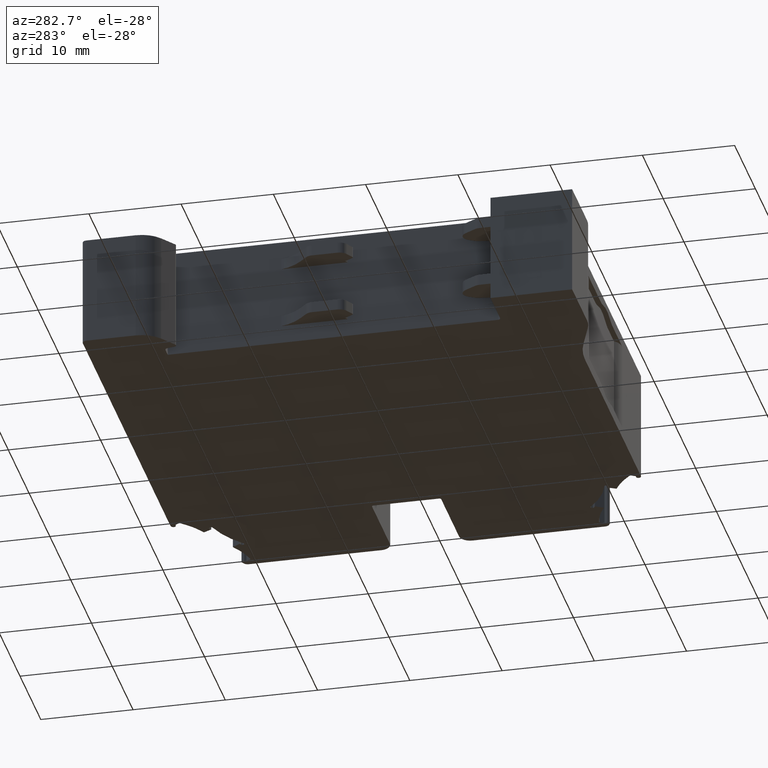
[diagram: clean part render]
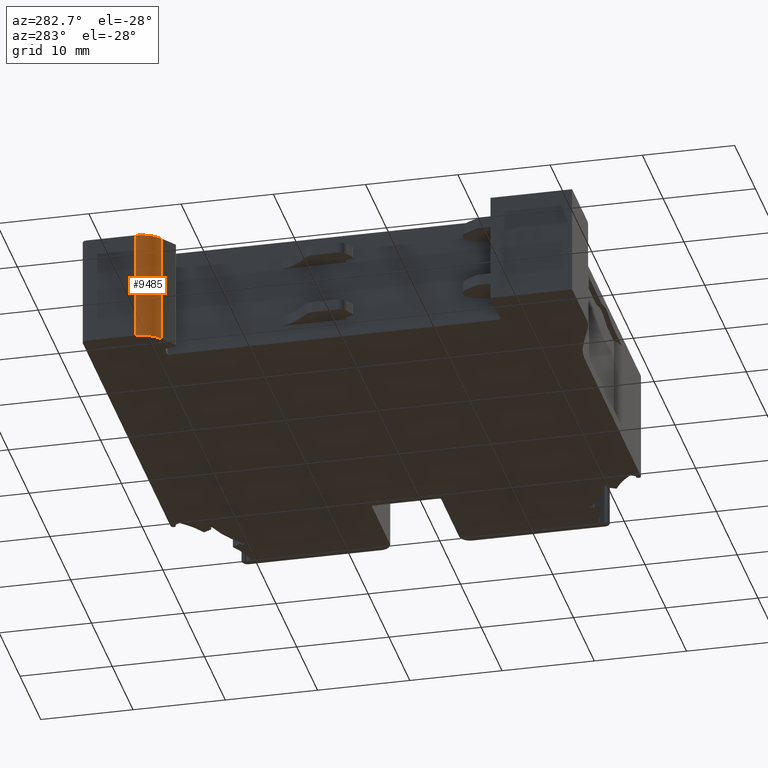
[diagram: same view with one face highlighted and labeled with its STEP entity id]
A machine part, auxiliary view. The second image highlights one B-rep face of the part: STEP entity #9485.
In plain terms, the highlighted cylindrical surface (edge-blend (fillet) strip) has radius 2.9999 mm, axis along (-0, 0, -1).
Its self-contained STEP definition (entity closure, byte-faithful):
#326 = DIRECTION ( 'NONE',  ( -1.706662860027260475E-28, 6.982966722218760189E-15, -1.000000000000000000 ) ) ;
#697 = DIRECTION ( 'NONE',  ( 0.000000000000000000, 1.000000000000000000, 6.939146733106212149E-15 ) ) ;
#1344 = DIRECTION ( 'NONE',  ( 0.000000000000000000, 1.000000000000000000, 9.252195644141615147E-15 ) ) ;
#1681 = LINE ( 'NONE', #7156, #10677 ) ;
#1703 = CIRCLE ( 'NONE', #6279, 2.999890694400028757 ) ;
#2751 = DIRECTION ( 'NONE',  ( 4.089659118476204995E-14, 1.077303488295632091E-12, -1.000000000000000000 ) ) ;
#2922 = EDGE_LOOP ( 'NONE', ( #9400, #13760, #8893, #14583 ) ) ;
#3378 = EDGE_CURVE ( 'NONE', #7422, #4333, #1703, .T. ) ;
#4333 = VERTEX_POINT ( 'NONE', #8525 ) ;
#5209 = CARTESIAN_POINT ( 'NONE',  ( 520.7670742828213406, -33.50281135122268239, -63.46407265014236998 ) ) ;
#5324 = AXIS2_PLACEMENT_3D ( 'NONE', #5209, #8084, #1344 ) ;
#5925 = CARTESIAN_POINT ( 'NONE',  ( 520.7670742828213406, -33.50281135122329346, 23.51836098756410109 ) ) ;
#6279 = AXIS2_PLACEMENT_3D ( 'NONE', #12031, #2751, #9324 ) ;
#6350 = DIRECTION ( 'NONE',  ( -1.706662860027260475E-28, 6.982966722218760189E-15, -1.000000000000000000 ) ) ;
#6440 = AXIS2_PLACEMENT_3D ( 'NONE', #5925, #16855, #697 ) ;
#6871 = CARTESIAN_POINT ( 'NONE',  ( 519.0463549339524434, -35.96014071475727292, -51.46849684109439238 ) ) ;
#7156 = CARTESIAN_POINT ( 'NONE',  ( 519.0463549339524434, -35.96014101994424550, 23.51836098756408688 ) ) ;
#7422 = VERTEX_POINT ( 'NONE', #6871 ) ;
#7599 = CIRCLE ( 'NONE', #5324, 2.999890694400028757 ) ;
#8084 = DIRECTION ( 'NONE',  ( -1.706662860027260251E-28, 6.982966722218760189E-15, -1.000000000000000000 ) ) ;
#8525 = CARTESIAN_POINT ( 'NONE',  ( 517.7671835884212896, -33.50281135122298792, -51.46849684109179890 ) ) ;
#8893 = ORIENTED_EDGE ( 'NONE', *, *, #11364, .F. ) ;
#8912 = VERTEX_POINT ( 'NONE', #14072 ) ;
#9324 = DIRECTION ( 'NONE',  ( 0.000000000000000000, -1.000000000000000000, -1.077880792542498161E-12 ) ) ;
#9400 = ORIENTED_EDGE ( 'NONE', *, *, #12268, .T. ) ;
#9485 = ADVANCED_FACE ( 'NONE', ( #17028 ), #11424, .T. ) ;
#10677 = VECTOR ( 'NONE', #326, 1000.000000000000000 ) ;
#11364 = EDGE_CURVE ( 'NONE', #7422, #12415, #1681, .T. ) ;
#11424 = CYLINDRICAL_SURFACE ( 'NONE', #6440, 2.999890694400028757 ) ;
#11504 = LINE ( 'NONE', #14390, #12510 ) ;
#11912 = EDGE_CURVE ( 'NONE', #12415, #8912, #7599, .T. ) ;
#12031 = CARTESIAN_POINT ( 'NONE',  ( 520.7670742828213406, -33.50281135122277476, -51.46849684109167100 ) ) ;
#12268 = EDGE_CURVE ( 'NONE', #4333, #8912, #11504, .T. ) ;
#12415 = VERTEX_POINT ( 'NONE', #17817 ) ;
#12510 = VECTOR ( 'NONE', #6350, 1000.000000000000000 ) ;
#13760 = ORIENTED_EDGE ( 'NONE', *, *, #11912, .F. ) ;
#14072 = CARTESIAN_POINT ( 'NONE',  ( 517.7671833384309821, -33.50281135122268239, -63.46407265014236998 ) ) ;
#14390 = CARTESIAN_POINT ( 'NONE',  ( 517.7671833384309821, -33.50281135122329346, 23.51836098756410109 ) ) ;
#14583 = ORIENTED_EDGE ( 'NONE', *, *, #3378, .T. ) ;
#16855 = DIRECTION ( 'NONE',  ( -1.706662860027260251E-28, 6.982966722218760189E-15, -1.000000000000000000 ) ) ;
#17028 = FACE_OUTER_BOUND ( 'NONE', #2922, .T. ) ;
#17817 = CARTESIAN_POINT ( 'NONE',  ( 519.0463549339524434, -35.96014101994364154, -63.46407265014238419 ) ) ;